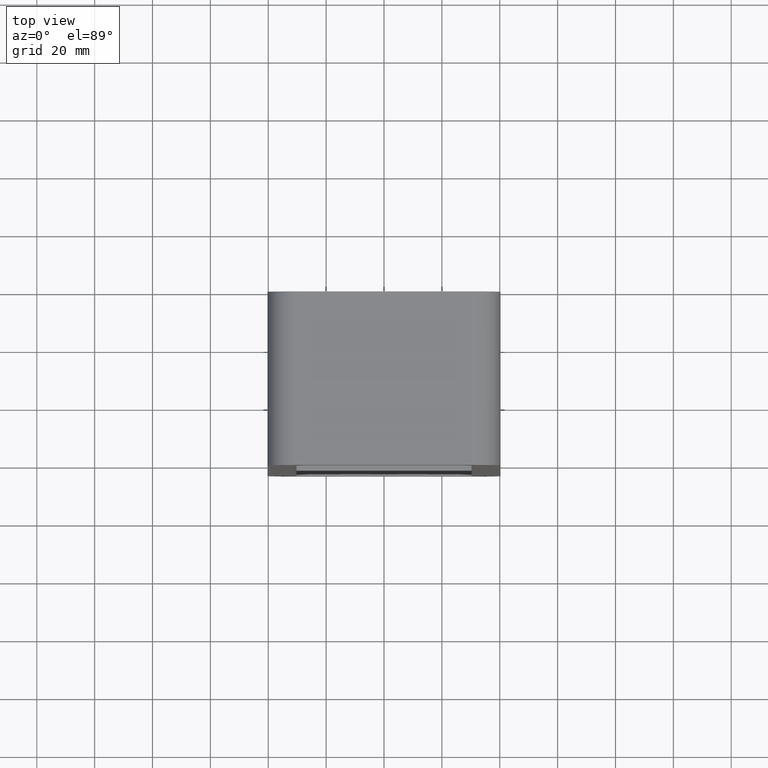
[diagram: clean part render]
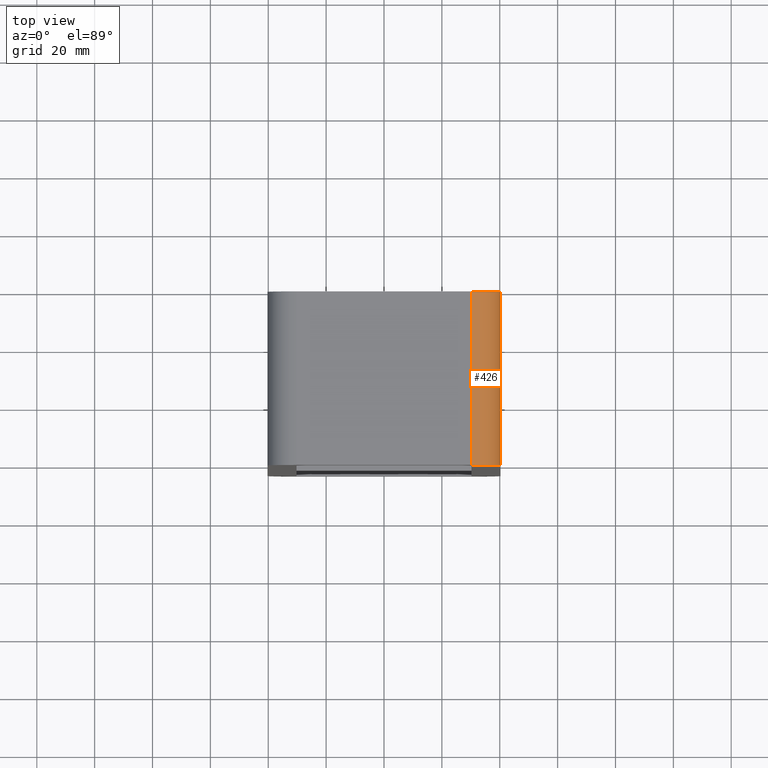
[diagram: same view with one face highlighted and labeled with its STEP entity id]
A machine part, top view. The second image highlights one B-rep face of the part: STEP entity #426.
In plain terms, the highlighted cylindrical surface (edge-blend (fillet) strip) has radius 10 mm, axis along (0, -1, 0).
Its self-contained STEP definition (entity closure, byte-faithful):
#289=CARTESIAN_POINT('',(40.25,-3.0,106.00000000000001));
#290=VERTEX_POINT('',#289);
#297=CARTESIAN_POINT('',(30.250000000000004,-3.0,116.00000000000001));
#298=VERTEX_POINT('',#297);
#299=CARTESIAN_POINT('',(30.250000000000004,-3.0,106.00000000000001));
#300=DIRECTION('',(0.0,1.0,0.0));
#301=DIRECTION('',(0.707106781186547,0.0,0.707106781186547));
#302=AXIS2_PLACEMENT_3D('',#299,#300,#301);
#303=CIRCLE('',#302,9.999999999999998);
#304=EDGE_CURVE('',#298,#290,#303,.T.);
#384=CARTESIAN_POINT('',(40.25,57.0,106.00000000000001));
#385=VERTEX_POINT('',#384);
#392=CARTESIAN_POINT('',(40.25,-3.0,106.00000000000001));
#393=DIRECTION('',(0.0,1.0,0.0));
#394=VECTOR('',#393,60.0);
#395=LINE('',#392,#394);
#396=EDGE_CURVE('',#290,#385,#395,.T.);
#402=CARTESIAN_POINT('',(30.250000000000004,0.0,106.00000000000001));
#403=DIRECTION('',(0.0,-1.0,0.0));
#404=DIRECTION('',(0.707106781186547,0.0,0.707106781186547));
#405=AXIS2_PLACEMENT_3D('',#402,#403,#404);
#406=CYLINDRICAL_SURFACE('',#405,10.0);
#407=ORIENTED_EDGE('',*,*,#304,.T.);
#408=ORIENTED_EDGE('',*,*,#396,.T.);
#409=CARTESIAN_POINT('',(30.250000000000004,57.0,116.00000000000001));
#410=VERTEX_POINT('',#409);
#411=CARTESIAN_POINT('',(30.250000000000004,57.0,106.00000000000001));
#412=DIRECTION('',(0.0,-1.0,0.0));
#413=DIRECTION('',(0.707106781186547,0.0,0.707106781186547));
#414=AXIS2_PLACEMENT_3D('',#411,#412,#413);
#415=CIRCLE('',#414,9.999999999999998);
#416=EDGE_CURVE('',#385,#410,#415,.T.);
#417=ORIENTED_EDGE('',*,*,#416,.T.);
#418=CARTESIAN_POINT('',(30.250000000000004,57.0,116.00000000000001));
#419=DIRECTION('',(0.0,-1.0,0.0));
#420=VECTOR('',#419,60.0);
#421=LINE('',#418,#420);
#422=EDGE_CURVE('',#410,#298,#421,.T.);
#423=ORIENTED_EDGE('',*,*,#422,.T.);
#424=EDGE_LOOP('',(#407,#408,#417,#423));
#425=FACE_OUTER_BOUND('',#424,.T.);
#426=ADVANCED_FACE('',(#425),#406,.T.);